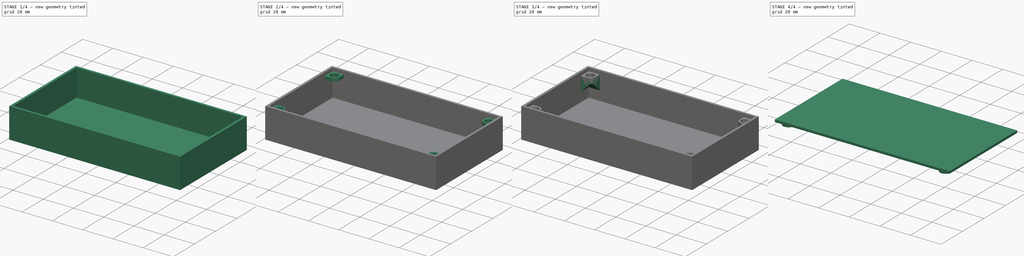
[diagram: build sequence overview — one tinted view per stage of 4, left to right]
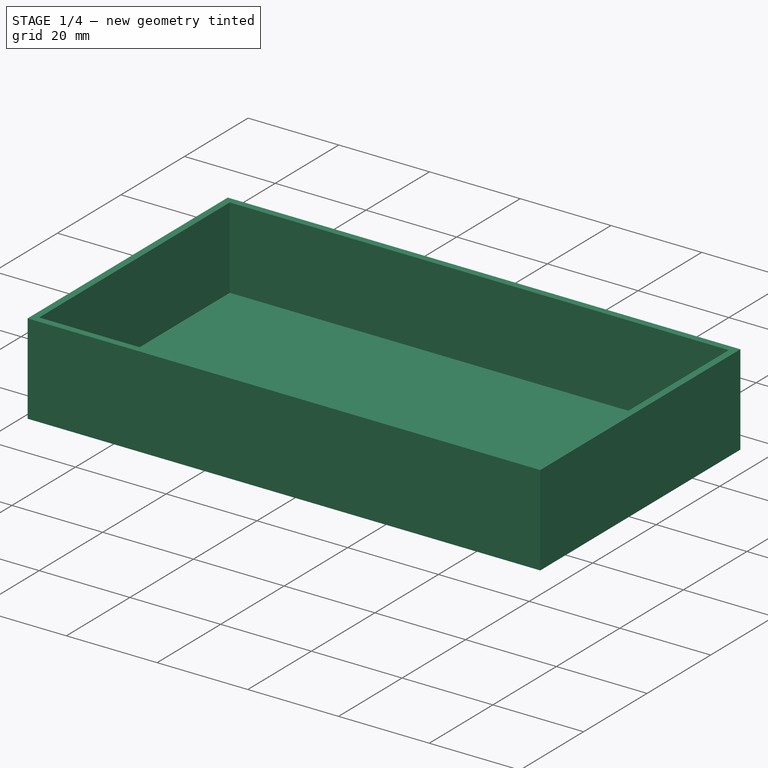
[diagram: stage 1 of 4 — iso view after this stage's code; geometry added in this stage tinted green]
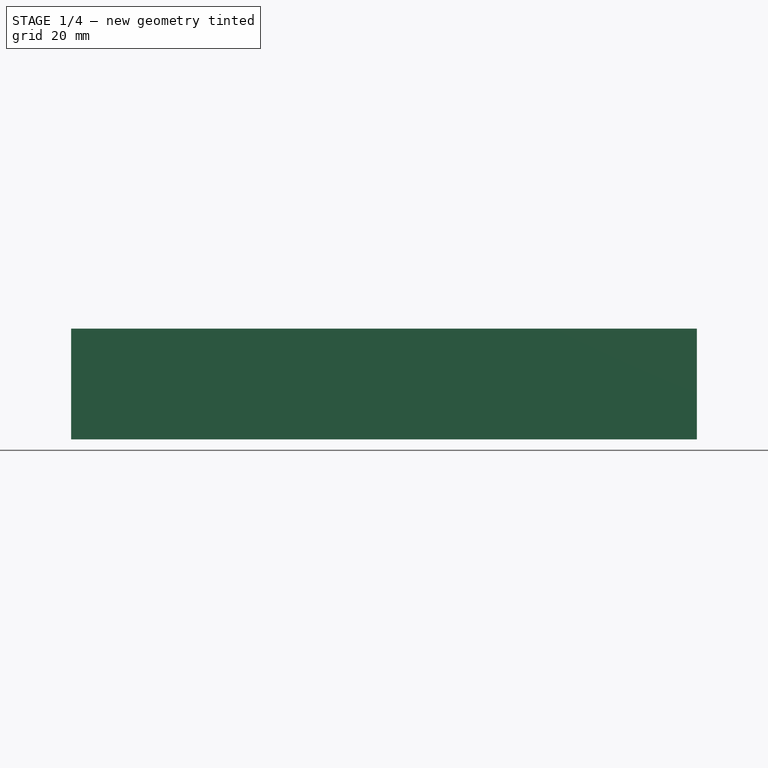
[diagram: stage 1 of 4 — front view after this stage's code; geometry added in this stage tinted green]
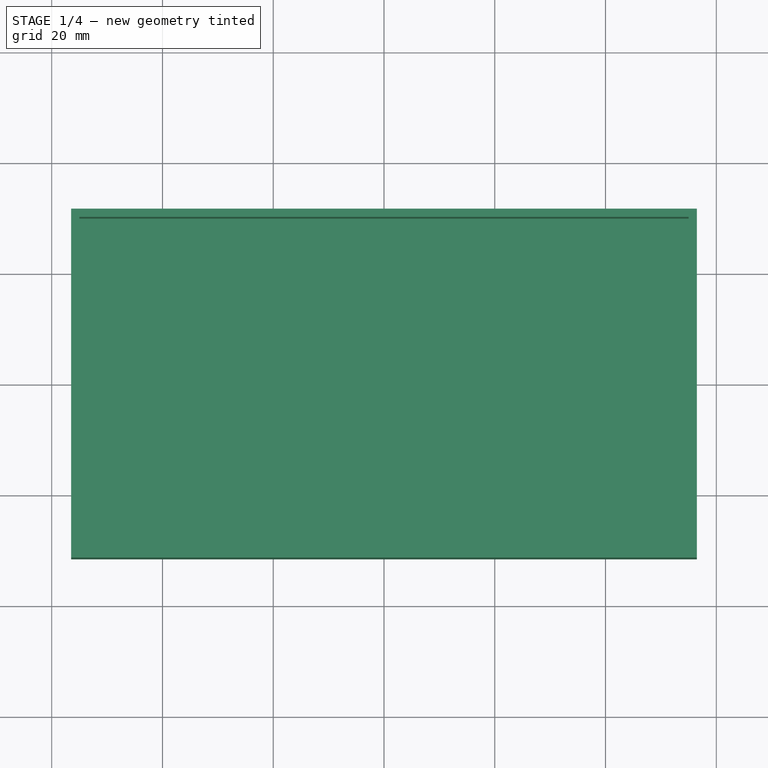
[diagram: stage 1 of 4 — top view after this stage's code; geometry added in this stage tinted green]
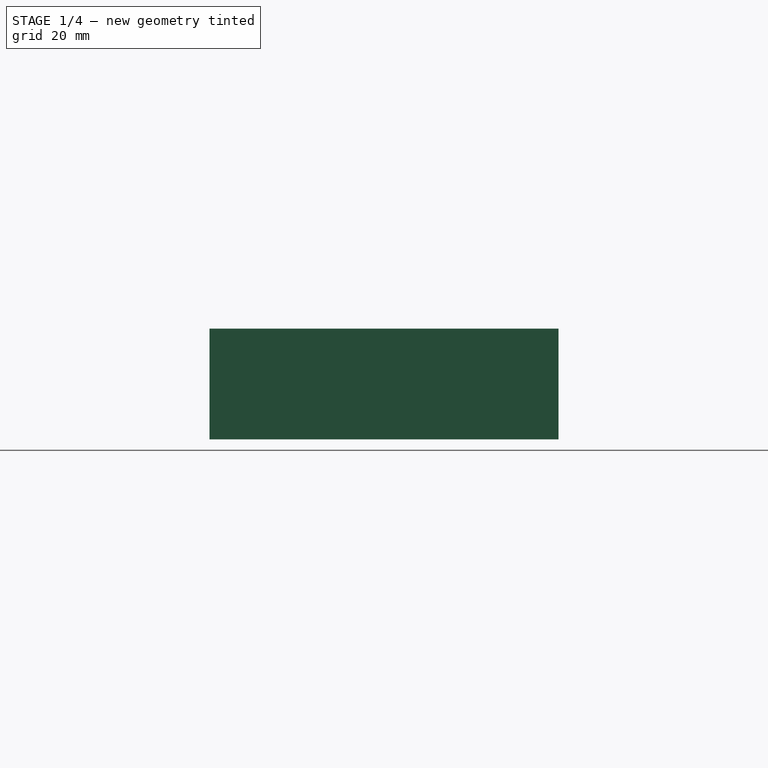
[diagram: stage 1 of 4 — right view after this stage's code; geometry added in this stage tinted green]
FCSTD DOCUMENT  (FreeCAD 1.0R39285 (Git))
Label: Коробка на магнитах v4
License: All rights reserved
LicenseURL: https://en.wikipedia.org/wiki/All_rights_reserved
objects: Sketcher::SketchObject×8, PartDesign::Pad×7, PartDesign::Plane×3, PartDesign::Body×2, Spreadsheet::Sheet×1, PartDesign::Mirrored×1, PartDesign::Pocket×1, PartDesign::SubShapeBinder×1
note: 48 computed .brp shape members not serialized (recipe doc carries the construction recipe); baked Part::Feature solids carry a one-line shape summary decoded from their .brp

FEATURE [Spreadsheet::Sheet] Spreadsheet  label="razm"
  cells = A1='Дно; B2='Ширина; C2(dno_shirina)=60; B3='Длина; C3(dno_dlina)=110; B4='Толщина; C4(dno_tolshina)=2; A7='Стенки; B8='Толщина; C8(stenki_tolshina)=1.5; B9='Высота; C9(stenki_visota)=20; A11='Крышка; B12='Толщина; C12(krisha_tolshina)=1.5; B13='Выступ; C13(krishka_vistup)=1; A15='Магниты; B16='Диаметр; C16(magnit_diametr)=5.2; B17='Толщина; C17(magnit_tolshina)=2.1; B18='Ободок; C18(magnit_obod)=1
FEATURE [Sketcher::SketchObject] Sketch
  ArcFitTolerance = 1e-06
  AttachmentSupport = -> [XY_Plane]
  FullyConstrained = true
  MakeInternals = false
  MapMode = 5
  expr: Constraints[5] = <<razm>>.dno_dlina
  expr: Constraints[6] = <<razm>>.dno_shirina
  sketch-geometry (4):
    g0: LineSegment StartX=-55 StartY=-30 StartZ=0 EndX=55 EndY=-30 EndZ=0
    g1: LineSegment StartX=55 StartY=-30 StartZ=0 EndX=55 EndY=30 EndZ=0
    g2: LineSegment StartX=55 StartY=30 StartZ=0 EndX=-55 EndY=30 EndZ=0
    g3: LineSegment StartX=-55 StartY=30 StartZ=0 EndX=-55 EndY=-30 EndZ=0
  constraints (11):
    c: Coincident(g1,g0)
    c: Vertical(g1)
    c: Coincident(g2,g1)
    c: Horizontal(g2)
    c: Coincident(g3,g2)
    c: DistanceX(g0,g0) = 110
    c: DistanceY(g1,g1) = 60
    c: Vertical(g3)
    c: Horizontal(g0)
    c: Coincident(g0,g3)
    c: Symmetric(g1,g0,g-1)
FEATURE [PartDesign::Pad] Pad  label="Дно"
  Direction = (0,0,1)
  Length = 2
  Length2 = 10
  Profile = -> Sketch
  ReferenceAxis = -> Sketch [N_Axis]
  Refine = true
  Suppressed = false
  Type = 0
  expr: Length = <<razm>>.dno_tolshina
FEATURE [Sketcher::SketchObject] Sketch001
  ArcFitTolerance = 1e-06
  AttachmentSupport = -> [XY_Plane]
  ExternalGeometry = -> [Sketch]
  FullyConstrained = true
  MakeInternals = false
  MapMode = 5
  expr: Constraints[17] = <<razm>>.dno_dlina + <<razm>>.stenki_tolshina * 2
  expr: Constraints[18] = <<razm>>.dno_shirina + <<razm>>.stenki_tolshina * 2
  sketch-geometry (8):
    g0: LineSegment StartX=-55 StartY=30 StartZ=0 EndX=-55 EndY=-30 EndZ=0
    g1: LineSegment StartX=-55 StartY=-30 StartZ=0 EndX=55 EndY=-30 EndZ=0
    g2: LineSegment StartX=55 StartY=-30 StartZ=0 EndX=55 EndY=30 EndZ=0
    g3: LineSegment StartX=55 StartY=30 StartZ=0 EndX=-55 EndY=30 EndZ=0
    g4: LineSegment StartX=-56.5 StartY=31.5 StartZ=0 EndX=-56.5 EndY=-31.5 EndZ=0
    g5: LineSegment StartX=-56.5 StartY=-31.5 StartZ=0 EndX=56.5 EndY=-31.5 EndZ=0
    g6: LineSegment StartX=56.5 StartY=-31.5 StartZ=0 EndX=56.5 EndY=31.5 EndZ=0
    g7: LineSegment StartX=56.5 StartY=31.5 StartZ=0 EndX=-56.5 EndY=31.5 EndZ=0
  constraints (19):
    c: Coincident(g0,g1)
    c: Coincident(g1,g2)
    c: Coincident(g2,g3)
    c: Coincident(g3,g0)
    c: Coincident(g4,g5)
    c: Coincident(g5,g6)
    c: Coincident(g6,g7)
    c: Coincident(g7,g4)
    c: Vertical(g4)
    c: Vertical(g6)
    c: Horizontal(g5)
    c: Horizontal(g7)
    c: Coincident(g0,g-6)
    c: Coincident(g2,g-4)
    c: Coincident(g1,g-5)
    c: Coincident(g0,g-6)
    c: Symmetric(g6,g4,g-1)
    c: DistanceX(g7,g7) = 113
    c: DistanceY(g6,g6) = 63
FEATURE [PartDesign::Pad] Pad001  label="Стенки"
  BaseFeature = -> Pad
  Direction = (0,0,1)
  Length = 20
  Length2 = 10
  Profile = -> Sketch001
  ReferenceAxis = -> Sketch001 [N_Axis]
  Refine = true
  Suppressed = false
  Type = 0
  expr: Length = <<razm>>.stenki_visota
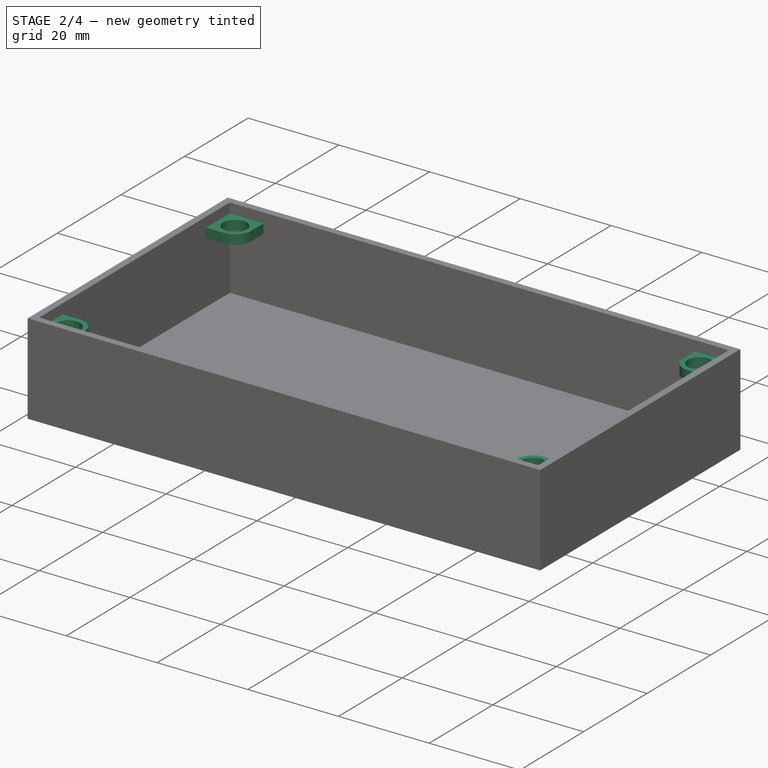
[diagram: stage 2 of 4 — iso view after this stage's code; geometry added in this stage tinted green]
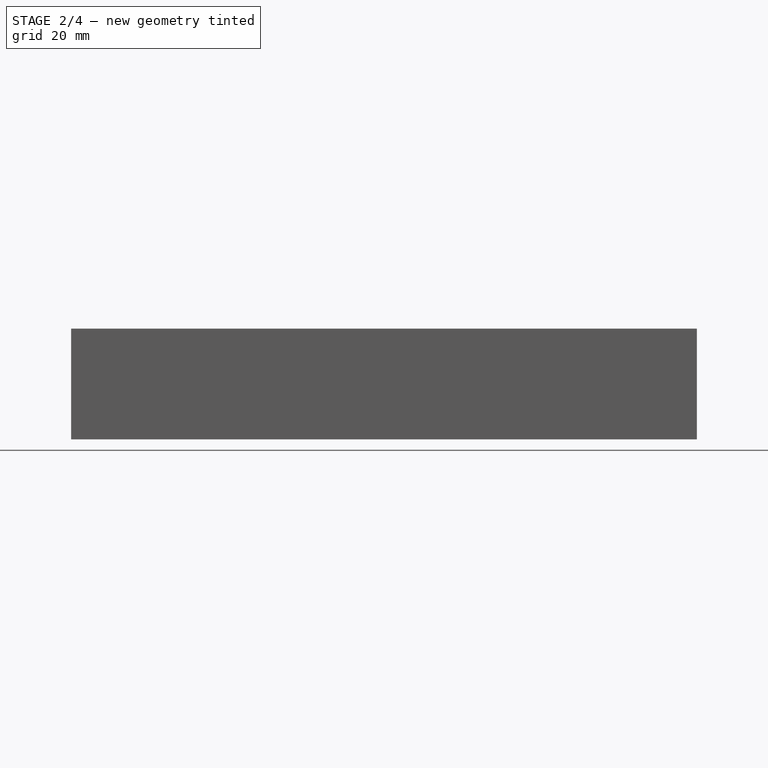
[diagram: stage 2 of 4 — front view after this stage's code; geometry added in this stage tinted green]
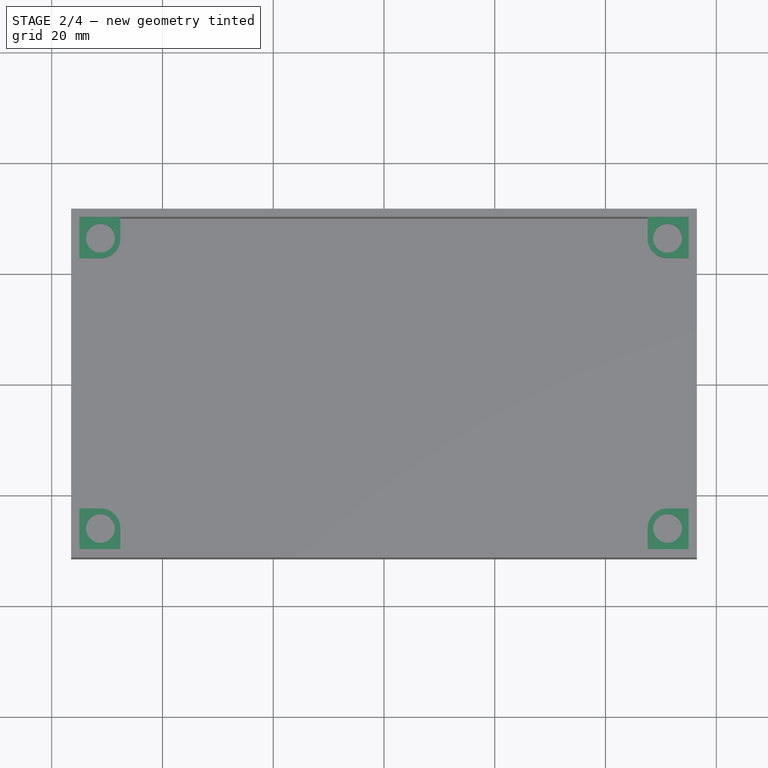
[diagram: stage 2 of 4 — top view after this stage's code; geometry added in this stage tinted green]
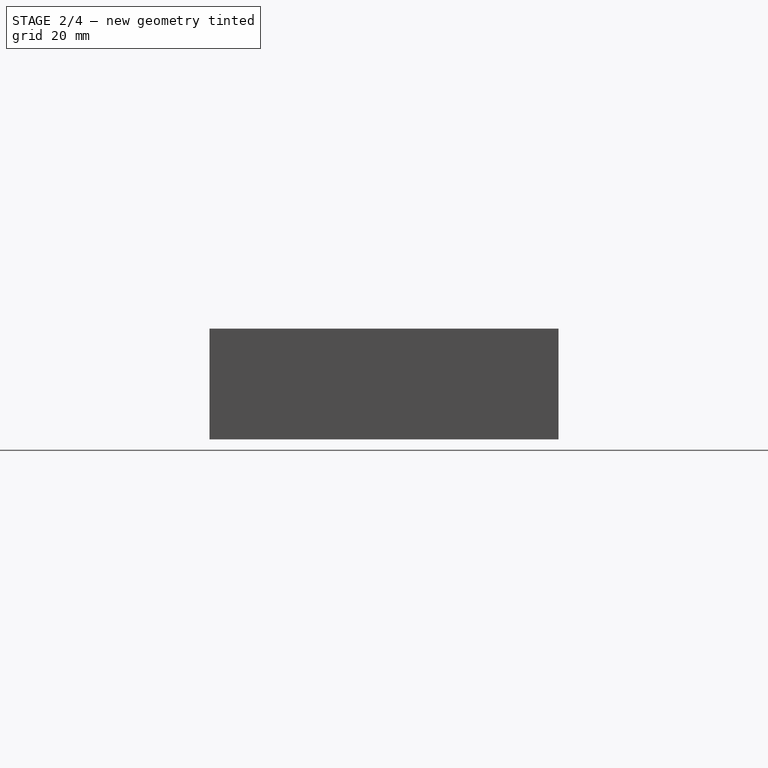
[diagram: stage 2 of 4 — right view after this stage's code; geometry added in this stage tinted green]
FEATURE [PartDesign::Plane] DatumPlane
  AttachmentSupport = -> [Pad005]
  Length = 130.949
  MapMode = 5
  Placement = pos=(0,0,50) rot=(1,0,0;3.14159rad)
  ResizeMode = 0
  Width = 79.9493
FEATURE [PartDesign::Plane] DatumPlane001
  AttachmentSupport = -> [Pad001]
  Length = 129.875
  MapMode = 5
  Placement = pos=(0,0,20) rot=(0,0,1;0rad)
  ResizeMode = 0
  Width = 79.8748
FEATURE [Sketcher::SketchObject] Sketch002
  ArcFitTolerance = 1e-06
  AttachmentOffset = pos=(0,0,-2.2) rot=(0,0,1;0rad)
  AttachmentSupport = -> [DatumPlane001]
  FullyConstrained = true
  MakeInternals = false
  MapMode = 5
  Placement = pos=(0,0,17.8) rot=(0,0,1;0rad)
  expr: .AttachmentOffset.Base.z = (<<razm>>.magnit_tolshina + 0.1) * -1
  expr: Constraints[10] = <<razm>>.magnit_diametr
  expr: Constraints[11] = <<razm>>.magnit_obod
  expr: Constraints[12] = <<razm>>.dno_dlina / 2 - (1.2 + 5.2 / 2)
  expr: Constraints[23] = <<razm>>.dno_dlina / 2 - (1.2 + 5.2 / 2)
  expr: Constraints[24] = <<razm>>.magnit_obod
  expr: Constraints[25] = <<razm>>.dno_shirina - (1.2 + 1 + <<razm>>.magnit_diametr) * 2
  expr: Constraints[29] = <<razm>>.dno_shirina
  sketch-geometry (12):
    g0: LineSegment StartX=-47.6 StartY=-26.2 StartZ=0 EndX=-47.6 EndY=-30 EndZ=0
    g1: LineSegment StartX=-47.6 StartY=-30 StartZ=0 EndX=-55 EndY=-30 EndZ=0
    g2: LineSegment StartX=-55 StartY=-30 StartZ=0 EndX=-55 EndY=-22.6 EndZ=0
    g3: LineSegment StartX=-55 StartY=-22.6 StartZ=0 EndX=-51.2 EndY=-22.6 EndZ=0
    g4: ArcOfCircle CenterX=-51.2 CenterY=26.2 CenterZ=0 NormalX=0 NormalY=0 NormalZ=1 AngleXU=0 Radius=3.6 StartAngle=4.71239 EndAngle=6.28319
    g5: Circle CenterX=-51.2 CenterY=26.2 CenterZ=0 NormalX=0 NormalY=0 NormalZ=1 AngleXU=0 Radius=2.6
    g6: Circle CenterX=-51.2 CenterY=-26.2 CenterZ=0 NormalX=0 NormalY=0 NormalZ=1 AngleXU=0 Radius=2.6
    g7: ArcOfCircle CenterX=-51.2 CenterY=-26.2 CenterZ=0 NormalX=0 NormalY=0 NormalZ=1 AngleXU=0 Radius=3.6 StartAngle=4e-16 EndAngle=1.5708
    g8: LineSegment StartX=-51.2 StartY=22.6 StartZ=0 EndX=-55 EndY=22.6 EndZ=0
    g9: LineSegment StartX=-47.6 StartY=26.2 StartZ=0 EndX=-47.6 EndY=30 EndZ=0
    g10: LineSegment StartX=-55 StartY=22.6 StartZ=0 EndX=-55 EndY=30 EndZ=0
    g11: LineSegment StartX=-55 StartY=30 StartZ=0 EndX=-47.6 EndY=30 EndZ=0
  constraints (31):
    c: Coincident(g0,g1)
    c: Horizontal(g1)
    c: Coincident(g2,g3)
    c: Coincident(g5,g4)
    c: Coincident(g7,g6)
    c: Vertical(g0)
    c: Vertical(g2)
    c: Tangent(g7,g3) = 1.5708
    c: Tangent(g7,g0) = 1.5708
    c: Equal(g6,g5)
    c: Diameter(g5) = 5.2
    c: Distance(g5,g4) = 1
    c: Distance(g6,g-2) = 51.2
    c: Equal(g1,g2)
    c: Horizontal(g8)
    c: Tangent(g9,g4) = -1.5708
    c: Tangent(g8,g4) = 1.5708
    c: Vertical(g9)
    c: Coincident(g8,g10)
    c: Vertical(g10)
    c: Coincident(g11,g9)
    c: Horizontal(g11)
    c: Equal(g9,g8)
    c: DistanceX(g4,g-1) = 51.2
    c: Distance(g6,g0) = 1
    c: DistanceY(g3,g4) = 45.2
    c: Coincident(g11,g10)
    c: Horizontal(g3)
    c: Coincident(g2,g1)
    c: DistanceY(g1,g10) = 60
    c: Symmetric(g2,g8,g-1)
FEATURE [PartDesign::Pad] Pad002
  BaseFeature = -> Pad001
  Direction = (0,0,1)
  Length = 2.1
  Length2 = 10
  Profile = -> Sketch002
  ReferenceAxis = -> Sketch002 [N_Axis]
  Refine = true
  Reversed = true
  Suppressed = false
  Type = 0
  expr: Length = <<razm>>.magnit_tolshina
FEATURE [PartDesign::Mirrored] Mirrored
  BaseFeature = -> Pad002
  MirrorPlane = -> YZ_Plane
  Originals = -> [Pad002]
  Refine = true
  Suppressed = false
  TransformMode = 0
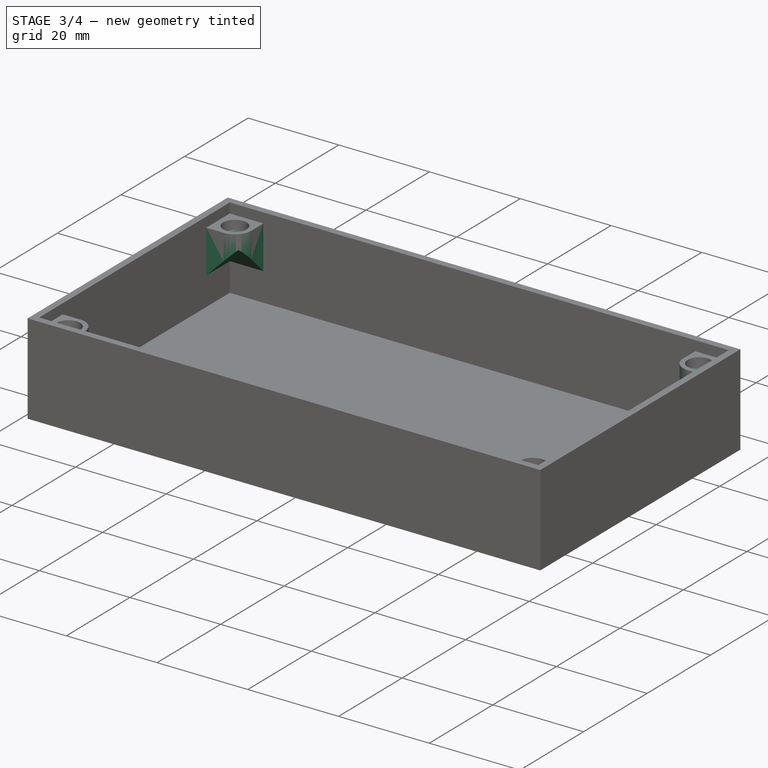
[diagram: stage 3 of 4 — iso view after this stage's code; geometry added in this stage tinted green]
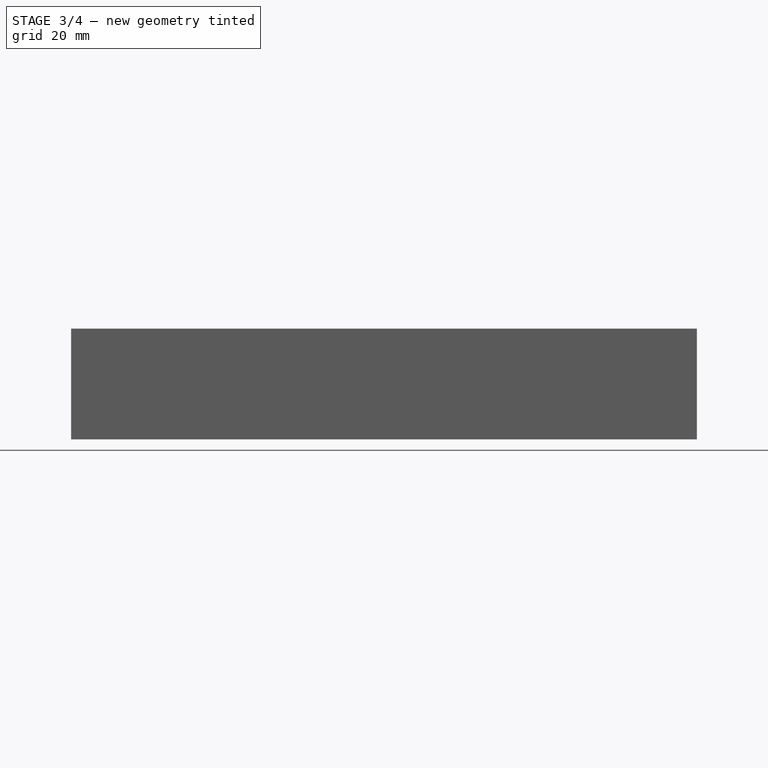
[diagram: stage 3 of 4 — front view after this stage's code; geometry added in this stage tinted green]
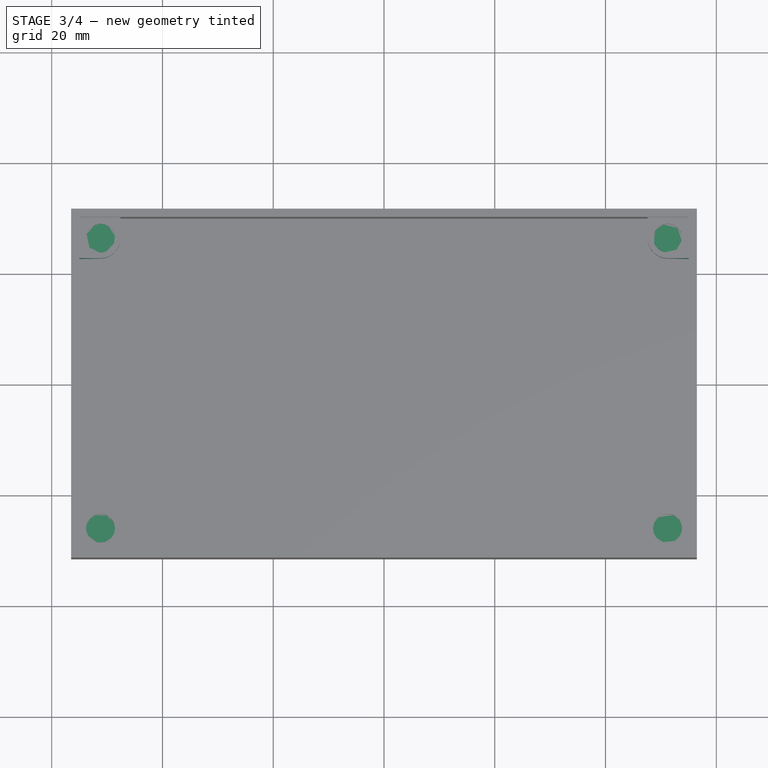
[diagram: stage 3 of 4 — top view after this stage's code; geometry added in this stage tinted green]
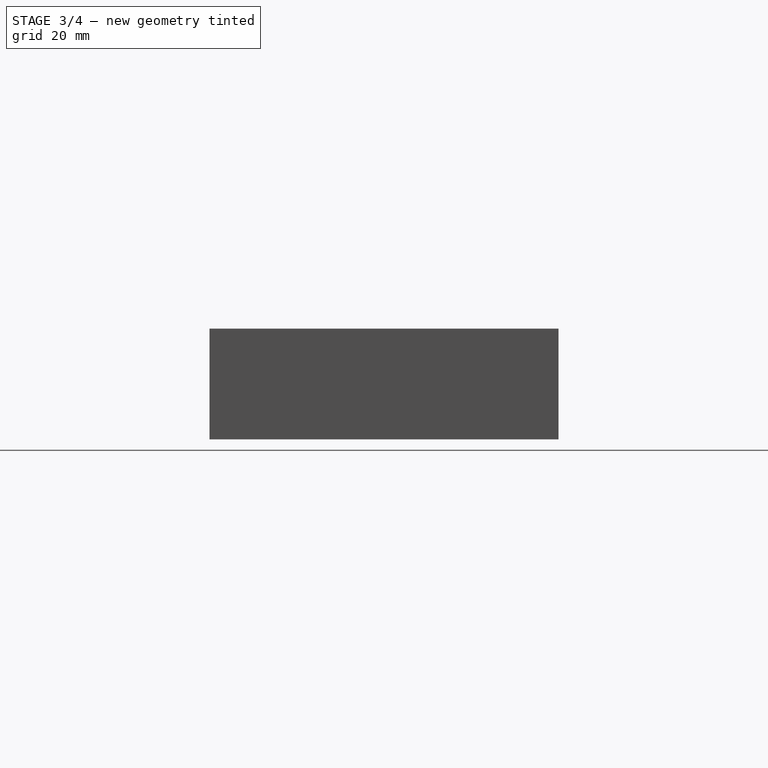
[diagram: stage 3 of 4 — right view after this stage's code; geometry added in this stage tinted green]
FEATURE [Sketcher::SketchObject] Sketch003
  ArcFitTolerance = 1e-06
  AttachmentSupport = -> [Mirrored]
  ExternalGeometry = -> [Mirrored]
  FullyConstrained = true
  MakeInternals = false
  MapMode = 5
  Placement = pos=(0,30,0) rot=(1,0,0;1.5708rad)
  expr: Constraints[8] = <<razm>>.dno_dlina
  sketch-geometry (6):
    g0: LineSegment StartX=-47.6 StartY=15.7 StartZ=0 EndX=-55 EndY=15.7 EndZ=0
    g1: LineSegment StartX=-55 StartY=15.7 StartZ=0 EndX=-55 EndY=8.3 EndZ=0
    g2: LineSegment StartX=-55 StartY=8.3 StartZ=0 EndX=-47.6 EndY=15.7 EndZ=0
    g3: LineSegment StartX=47.6 StartY=15.7 StartZ=0 EndX=55 EndY=15.7 EndZ=0
    g4: LineSegment StartX=55 StartY=15.7 StartZ=0 EndX=55 EndY=8.3 EndZ=0
    g5: LineSegment StartX=55 StartY=8.3 StartZ=0 EndX=47.6 EndY=15.7 EndZ=0
  constraints (16):
    c: Vertical(g1)
    c: Coincident(g1,g2)
    c: Coincident(g4,g5)
    c: Coincident(g3,g4)
    c: Coincident(g5,g3)
    c: Horizontal(g3)
    c: Coincident(g0,g1)
    c: Coincident(g0,g2)
    c: DistanceX(g0,g3) = 110
    c: Symmetric(g0,g3,g-2)
    c: Horizontal(g0)
    c: Equal(g0,g1)
    c: Coincident(g0,g-3)
    c: Vertical(g4)
    c: Equal(g4,g3)
    c: Equal(g3,g0)
FEATURE [PartDesign::Pad] Pad003
  BaseFeature = -> Mirrored
  Direction = (0,-1,2e-16)
  Length = 10
  Length2 = 10
  Profile = -> Sketch003
  ReferenceAxis = -> Sketch003 [N_Axis]
  Refine = true
  Suppressed = false
  Type = 1
FEATURE [Sketcher::SketchObject] Sketch004
  ArcFitTolerance = 1e-06
  AttachmentSupport = -> [Pad003]
  ExternalGeometry = -> [Pad003]
  FullyConstrained = true
  MakeInternals = false
  MapMode = 5
  Placement = pos=(55,0,0) rot=(0.57735,-0.57735,-0.57735;2.0944rad)
  sketch-geometry (6):
    g0: LineSegment StartX=22.6 StartY=15.7 StartZ=0 EndX=30 EndY=8.3 EndZ=0
    g1: LineSegment StartX=30 StartY=8.3 StartZ=0 EndX=30 EndY=15.7 EndZ=0
    g2: LineSegment StartX=30 StartY=15.7 StartZ=0 EndX=22.6 EndY=15.7 EndZ=0
    g3: LineSegment StartX=-22.6 StartY=15.7 StartZ=0 EndX=-30 EndY=15.7 EndZ=0
    g4: LineSegment StartX=-30 StartY=15.7 StartZ=0 EndX=-30 EndY=8.3 EndZ=0
    g5: LineSegment StartX=-30 StartY=8.3 StartZ=0 EndX=-22.6 EndY=15.7 EndZ=0
  constraints (16):
    c: Coincident(g0,g1)
    c: Coincident(g1,g2)
    c: Coincident(g2,g0)
    c: Horizontal(g2)
    c: Coincident(g3,g4)
    c: Coincident(g4,g5)
    c: Coincident(g5,g3)
    c: Vertical(g4)
    c: Horizontal(g3)
    c: Vertical(g1)
    c: Coincident(g0,g-3)
    c: Coincident(g3,g-3)
    c: Vertical(g3,g-4)
    c: Vertical(g1,g-5)
    c: Equal(g3,g4)
    c: Horizontal(g4,g0)
FEATURE [PartDesign::Pad] Pad004
  BaseFeature = -> Pad003
  Direction = (-1,0,0)
  Length = 10
  Length2 = 10
  Profile = -> Sketch004
  ReferenceAxis = -> Sketch004 [N_Axis]
  Refine = true
  Suppressed = false
  Type = 1
FEATURE [PartDesign::Plane] DatumPlane002
  AttachmentSupport = -> [Pad004]
  Length = 129.875
  MapMode = 5
  Placement = pos=(0,0,15.7) rot=(0,0,1;0rad)
  ResizeMode = 0
  Width = 79.8748
FEATURE [Sketcher::SketchObject] Sketch008
  ArcFitTolerance = 1e-06
  AttachmentSupport = -> [DatumPlane002]
  FullyConstrained = true
  MakeInternals = false
  MapMode = 5
  Placement = pos=(0,0,15.7) rot=(0,0,1;0rad)
  expr: Constraints[28] = <<razm>>.magnit_diametr / 2 + 1
  expr: Constraints[29] = <<razm>>.dno_dlina
  expr: Constraints[30] = <<razm>>.dno_shirina
  expr: Constraints[37] = <<razm>>.dno_dlina / 2 - (1.2 + 5.2 / 2)
  sketch-geometry (16):
    g0: LineSegment StartX=-51.2 StartY=22.6 StartZ=0 EndX=-55 EndY=22.6 EndZ=0
    g1: LineSegment StartX=-47.6 StartY=26.2 StartZ=0 EndX=-47.6 EndY=30 EndZ=0
    g2: LineSegment StartX=47.6 StartY=30 StartZ=0 EndX=47.6 EndY=26.2 EndZ=0
    g3: LineSegment StartX=51.2 StartY=22.6 StartZ=0 EndX=55 EndY=22.6 EndZ=0
    g4: LineSegment StartX=51.2 StartY=-22.6 StartZ=0 EndX=55 EndY=-22.6 EndZ=0
    g5: LineSegment StartX=47.6 StartY=-26.2 StartZ=0 EndX=47.6 EndY=-30 EndZ=0
    g6: LineSegment StartX=-47.6 StartY=-26.2 StartZ=0 EndX=-47.6 EndY=-30 EndZ=0
    g7: LineSegment StartX=-55 StartY=-22.6 StartZ=0 EndX=-51.2 EndY=-22.6 EndZ=0
    g8: ArcOfCircle CenterX=-51.2 CenterY=-26.2 CenterZ=0 NormalX=0 NormalY=0 NormalZ=1 AngleXU=0 Radius=3.6 StartAngle=3e-16 EndAngle=1.5708
    g9: ArcOfCircle CenterX=51.2 CenterY=26.2 CenterZ=0 NormalX=0 NormalY=0 NormalZ=1 AngleXU=0 Radius=3.6 StartAngle=3.14159 EndAngle=4.71239
    g10: ArcOfCircle CenterX=51.2 CenterY=-26.2 CenterZ=0 NormalX=0 NormalY=0 NormalZ=1 AngleXU=0 Radius=3.6 StartAngle=1.5708 EndAngle=3.14159
    g11: LineSegment StartX=-55 StartY=-22.6 StartZ=0 EndX=-55 EndY=22.6 EndZ=0
    g12: LineSegment StartX=-47.6 StartY=30 StartZ=0 EndX=47.6 EndY=30 EndZ=0
    g13: LineSegment StartX=55 StartY=22.6 StartZ=0 EndX=55 EndY=-22.6 EndZ=0
    g14: LineSegment StartX=47.6 StartY=-30 StartZ=0 EndX=-47.6 EndY=-30 EndZ=0
    g15: ArcOfCircle CenterX=-51.2 CenterY=26.2 CenterZ=0 NormalX=0 NormalY=0 NormalZ=1 AngleXU=0 Radius=3.6 StartAngle=4.71239 EndAngle=6.28319
  constraints (38):
    c: Horizontal(g0)
    c: Horizontal(g3)
    c: Equal(g6,g7)
    c: Equal(g3,g2)
    c: Equal(g4,g5)
    c: Horizontal(g4)
    c: Vertical(g5)
    c: Vertical(g2)
    c: Vertical(g1)
    c: Horizontal(g7)
    c: Tangent(g10,g5) = -1.5708
    c: Tangent(g10,g4) = 1.5708
    c: Tangent(g9,g3) = -1.5708
    c: Tangent(g8,g7) = 1.5708
    c: Tangent(g8,g6) = 1.5708
    c: Coincident(g11,g0)
    c: Coincident(g12,g1)
    c: Coincident(g12,g2)
    c: Tangent(g2,g9) = -1.5708
    c: Coincident(g13,g3)
    c: Coincident(g13,g4)
    c: Coincident(g14,g5)
    c: Coincident(g14,g6)
    c: Tangent(g15,g0) = 1.5708
    c: Tangent(g15,g1) = -1.5708
    c: Coincident(g7,g11)
    c: Equal(g9,g10)
    c: Equal(g10,g8)
    c: Radius(g8) = 3.6
    c: DistanceX(g7,g4) = 110
    c: DistanceY(g5,g2) = 60
    c: Symmetric(g5,g6,g-2)
    c: Symmetric(g1,g2,g-2)
    c: Symmetric(g7,g0,g-1)
    c: Symmetric(g7,g4,g-2)
    c: Symmetric(g0,g3,g-2)
    c: Symmetric(g1,g6,g-1)
    c: Distance(g15,g-2) = 51.2
FEATURE [PartDesign::Pocket] Pocket
  BaseFeature = -> Pad004
  Direction = (0,0,-1)
  Length = 0
  Length2 = 5
  Profile = -> Sketch008
  ReferenceAxis = -> Sketch008 [N_Axis]
  Refine = true
  Suppressed = false
  Type = 3
  UpToFace = -> Pad004 [Face44]
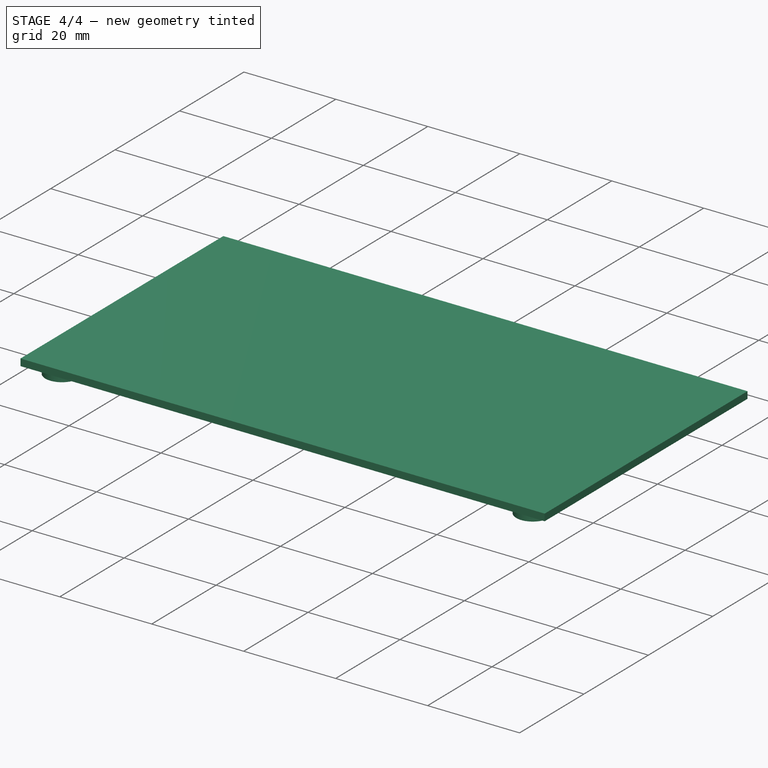
[diagram: stage 4 of 4 — iso view after this stage's code; geometry added in this stage tinted green]
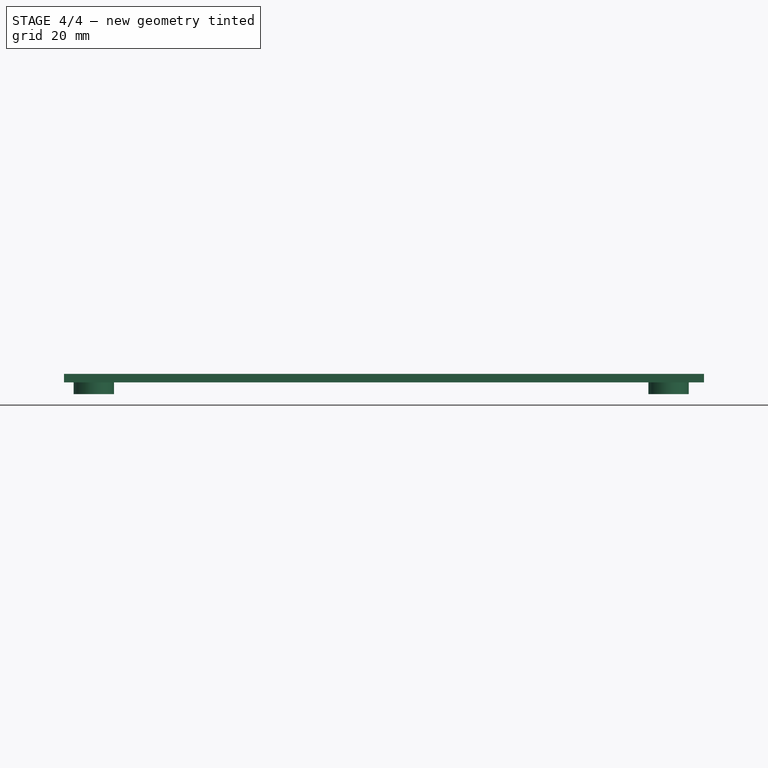
[diagram: stage 4 of 4 — front view after this stage's code; geometry added in this stage tinted green]
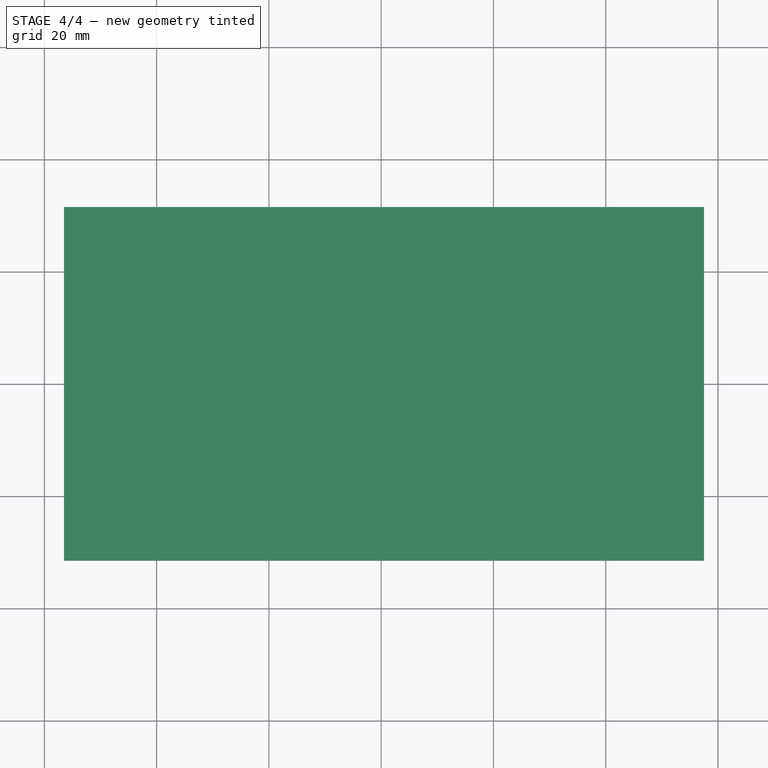
[diagram: stage 4 of 4 — top view after this stage's code; geometry added in this stage tinted green]
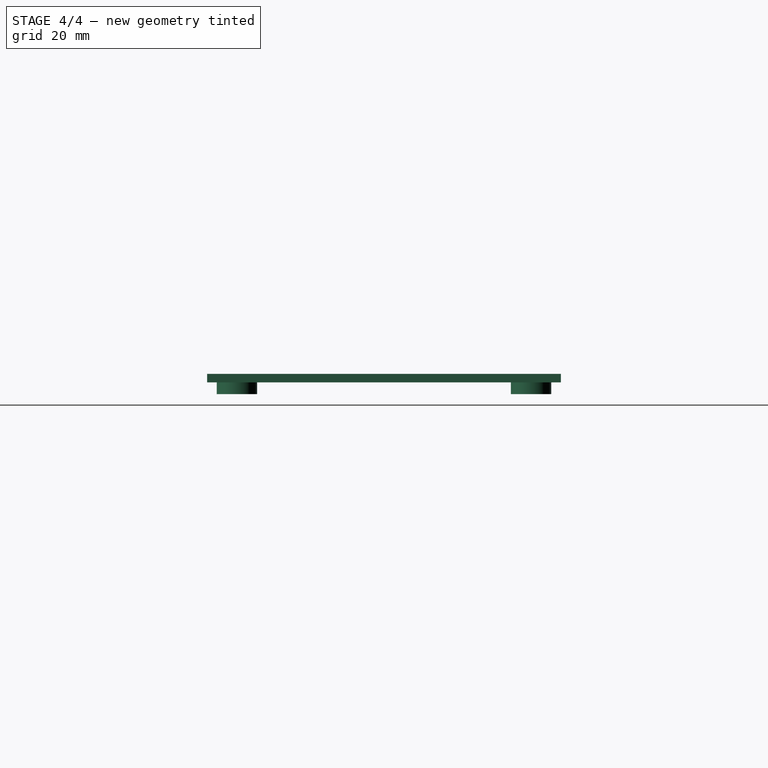
[diagram: stage 4 of 4 — right view after this stage's code; geometry added in this stage tinted green]
FEATURE [Sketcher::SketchObject] Sketch006
  ArcFitTolerance = 1e-06
  AttachmentOffset = pos=(0,0,50) rot=(0,0,1;0rad)
  AttachmentSupport = -> [XY_Plane001]
  FullyConstrained = true
  MakeInternals = false
  MapMode = 5
  Placement = pos=(0,0,50) rot=(0,0,1;0rad)
  expr: .AttachmentOffset.Base.z = <<razm>>.stenki_visota + 30
  expr: Constraints[10] = <<razm>>.dno_shirina + <<razm>>.stenki_tolshina * 2
  expr: Constraints[18] = <<razm>>.dno_dlina + <<razm>>.stenki_tolshina * 2 + <<razm>>.krishka_vistup
  expr: Constraints[9] = <<razm>>.dno_dlina + <<razm>>.stenki_tolshina * 2
  sketch-geometry (7):
    g0: LineSegment StartX=-56.5 StartY=31.5 StartZ=0 EndX=-56.5 EndY=-31.5 EndZ=0
    g1: LineSegment StartX=-56.5 StartY=-31.5 StartZ=0 EndX=56.5 EndY=-31.5 EndZ=0
    g2: LineSegment [constr] StartX=56.5 StartY=-31.5 StartZ=0 EndX=56.5 EndY=31.5 EndZ=0
    g3: LineSegment StartX=56.5 StartY=31.5 StartZ=0 EndX=-56.5 EndY=31.5 EndZ=0
    g4: LineSegment StartX=56.5 StartY=31.5 StartZ=0 EndX=57.5 EndY=31.5 EndZ=0
    g5: LineSegment StartX=57.5 StartY=31.5 StartZ=0 EndX=57.5 EndY=-31.5 EndZ=0
    g6: LineSegment StartX=57.5 StartY=-31.5 StartZ=0 EndX=56.5 EndY=-31.5 EndZ=0
  constraints (19):
    c: Coincident(g0,g1)
    c: Coincident(g1,g2)
    c: Coincident(g2,g3)
    c: Coincident(g3,g0)
    c: Vertical(g0)
    c: Vertical(g2)
    c: Horizontal(g1)
    c: Horizontal(g3)
    c: Symmetric(g2,g0,g-1)
    c: DistanceX(g3,g3) = 113
    c: DistanceY(g0,g0) = 63
    c: Coincident(g2,g4)
    c: Coincident(g4,g5)
    c: Vertical(g5)
    c: Coincident(g5,g6)
    c: Coincident(g6,g1)
    c: Horizontal(g4)
    c: Horizontal(g6)
    c: DistanceX(g0,g4) = 114
FEATURE [PartDesign::Pad] Pad005
  Direction = (0,0,1)
  Length = 1.5
  Length2 = 10
  Profile = -> Sketch006
  ReferenceAxis = -> Sketch006 [N_Axis]
  Refine = true
  Suppressed = false
  Type = 0
  expr: Length = <<razm>>.krisha_tolshina
FEATURE [PartDesign::Body] Body  label="Коробка"
  AllowCompound = false
  Group = -> [Sketch,Pad,Sketch001,Pad001,DatumPlane001,Sketch002,Pad002,Mirrored,Sketch003,Pad003,Sketch004,Pad004,Sketch008,Pocket,DatumPlane002]
  Origin = -> Origin
  Tip = -> Pocket
FEATURE [PartDesign::SubShapeBinder] Binder
  BindCopyOnChange = 0
  BindMode = 0
  ClaimChildren = false
  Context = -> Body001 [Binder.]
  Fuse = false
  MakeFace = true
  OffsetFill = false
  OffsetIntersection = false
  OffsetJoinType = 0
  OffsetOpenResult = false
  PartialLoad = false
  Refine = true
  Relative = true
  Support = -> [Body[Sketch002.Edge11,Sketch002.Edge12,Pocket.Edge84,Pocket.Edge91]]
  _Version = 2
FEATURE [Sketcher::SketchObject] Sketch007
  ArcFitTolerance = 1e-06
  AttachmentSupport = -> [DatumPlane]
  ExternalGeometry = -> [Binder]
  FullyConstrained = true
  MakeInternals = false
  MapMode = 5
  Placement = pos=(0,0,50) rot=(1,0,0;3.14159rad)
  sketch-geometry (8):
    g0: Circle CenterX=-51.2 CenterY=26.2 CenterZ=0 NormalX=0 NormalY=0 NormalZ=1 AngleXU=0 Radius=3.6
    g1: Circle CenterX=-51.2 CenterY=26.2 CenterZ=0 NormalX=0 NormalY=0 NormalZ=1 AngleXU=0 Radius=2.6
    g2: Circle CenterX=51.2 CenterY=26.2 CenterZ=0 NormalX=0 NormalY=0 NormalZ=1 AngleXU=0 Radius=2.6
    g3: Circle CenterX=51.2 CenterY=26.2 CenterZ=0 NormalX=0 NormalY=0 NormalZ=1 AngleXU=0 Radius=3.6
    g4: Circle CenterX=51.2 CenterY=-26.2 CenterZ=0 NormalX=0 NormalY=0 NormalZ=1 AngleXU=0 Radius=2.6
    g5: Circle CenterX=51.2 CenterY=-26.2 CenterZ=0 NormalX=0 NormalY=0 NormalZ=1 AngleXU=0 Radius=3.6
    g6: Circle CenterX=-51.2 CenterY=-26.2 CenterZ=0 NormalX=0 NormalY=0 NormalZ=1 AngleXU=0 Radius=2.6
    g7: Circle CenterX=-51.2 CenterY=-26.2 CenterZ=0 NormalX=0 NormalY=0 NormalZ=1 AngleXU=0 Radius=3.6
  constraints (16):
    c: Distance(g0,g1) = 1
    c: Equal(g3,g5)
    c: Equal(g5,g7)
    c: Coincident(g4,g5)
    c: Coincident(g7,g6)
    c: Coincident(g2,g3)
    c: Coincident(g0,g1)
    c: Coincident(g2,g-6)
    c: Coincident(g-5,g4)
    c: Coincident(g6,g-4)
    c: Coincident(g0,g-3)
    c: Distance(g6,g7) = 1
    c: Equal(g6,g-4)
    c: Equal(g4,g-5)
    c: Equal(g2,g-6)
    c: Equal(g1,g-3)
FEATURE [PartDesign::Pad] Pad006
  BaseFeature = -> Pad005
  Direction = (0,0,-1)
  Length = 2.1
  Length2 = 10
  Profile = -> Sketch007
  ReferenceAxis = -> Sketch007 [N_Axis]
  Refine = true
  Suppressed = false
  Type = 0
  expr: Length = <<razm>>.magnit_tolshina
FEATURE [PartDesign::Body] Body001  label="Тело"
  AllowCompound = false
  Group = -> [Binder,Sketch006,Pad005,DatumPlane,Sketch007,Pad006]
  Origin = -> Origin001
  Placement = pos=(0,0,-29) rot=(0,0,1;0rad)
  Tip = -> Pad006
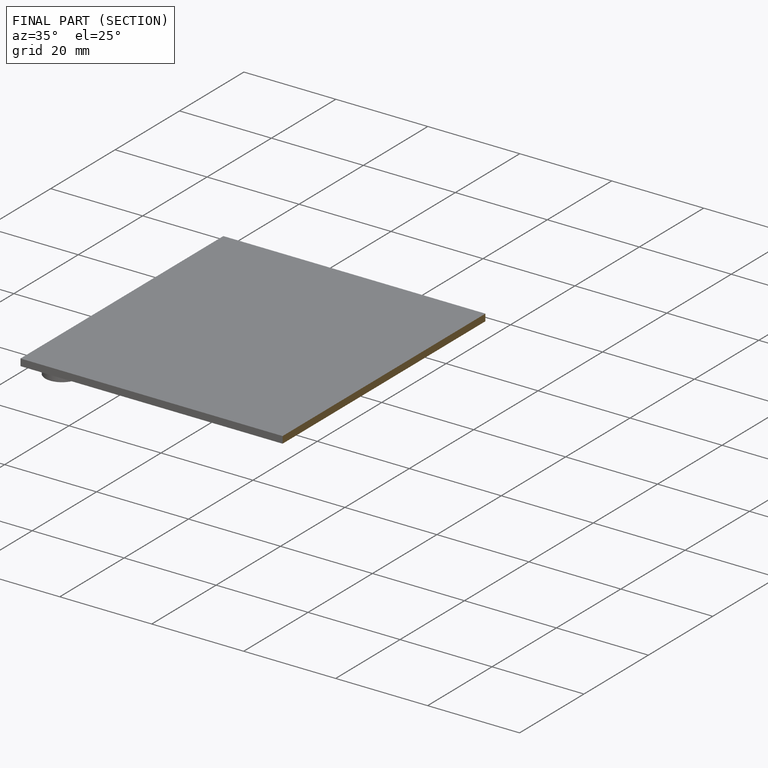
[diagram: finished part — half-section view (interior)]
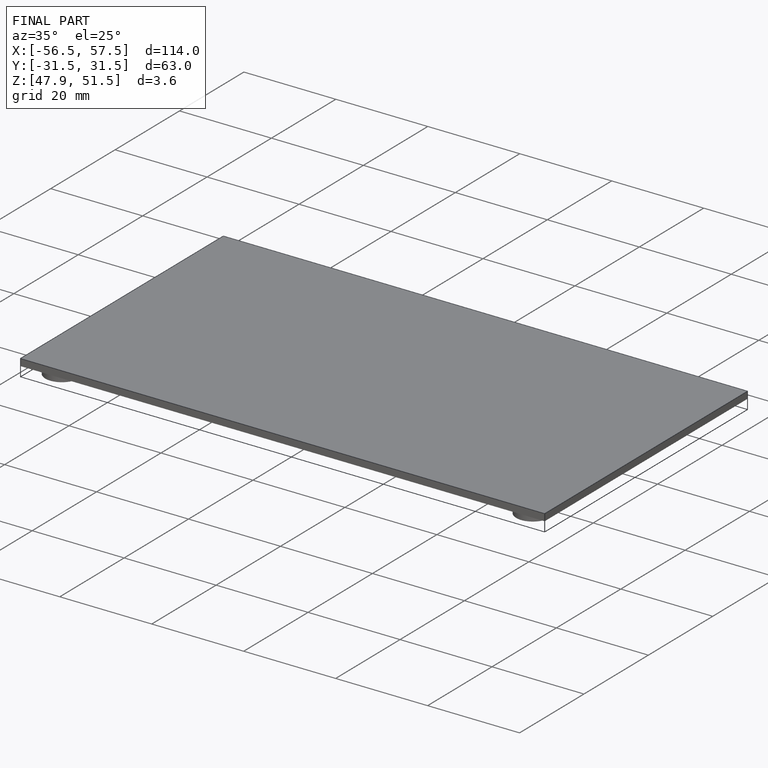
[diagram: finished part — iso view with bounding-box wireframe]
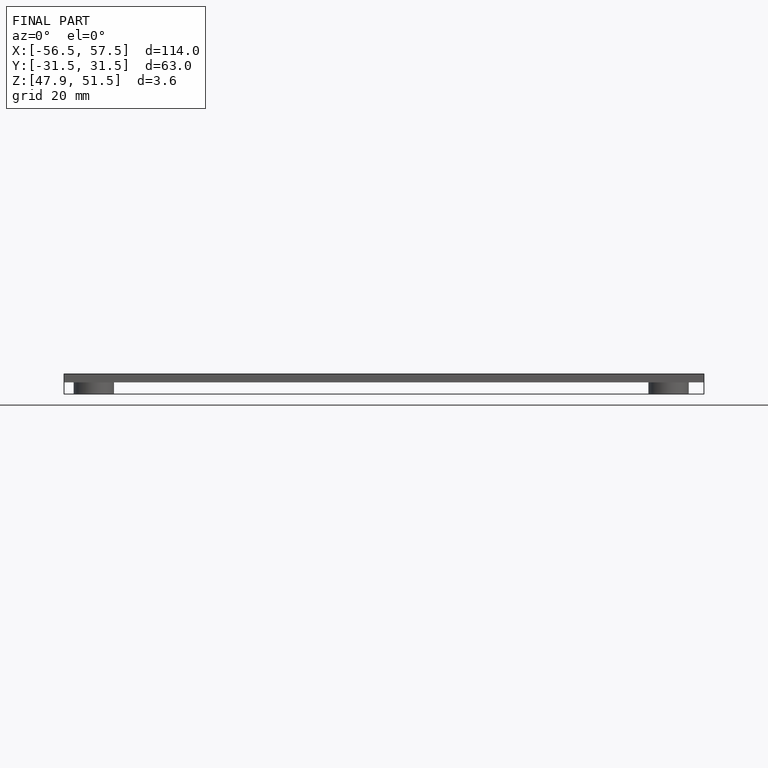
[diagram: finished part — front view with bounding-box wireframe]
